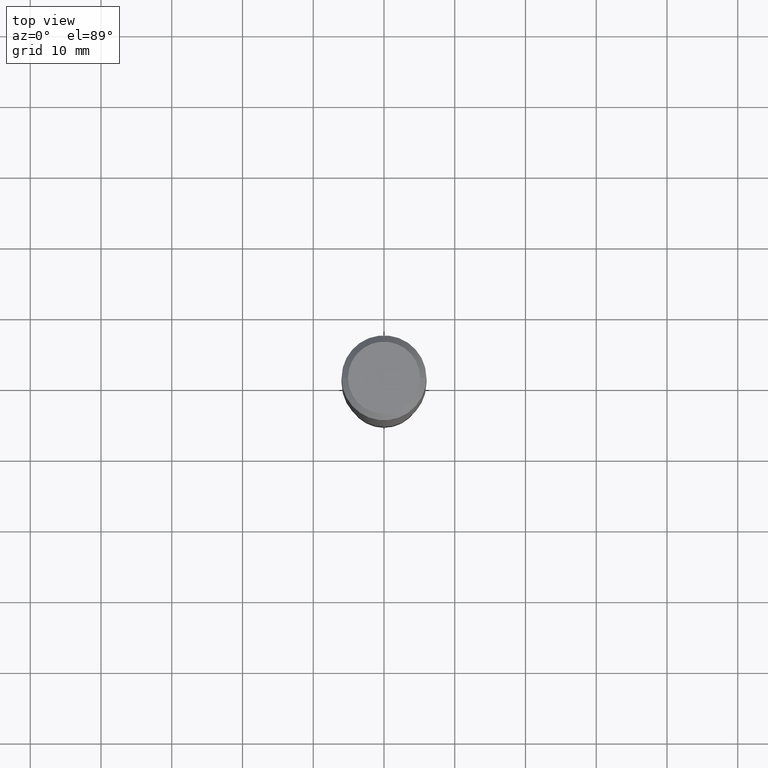
[diagram: clean part render]
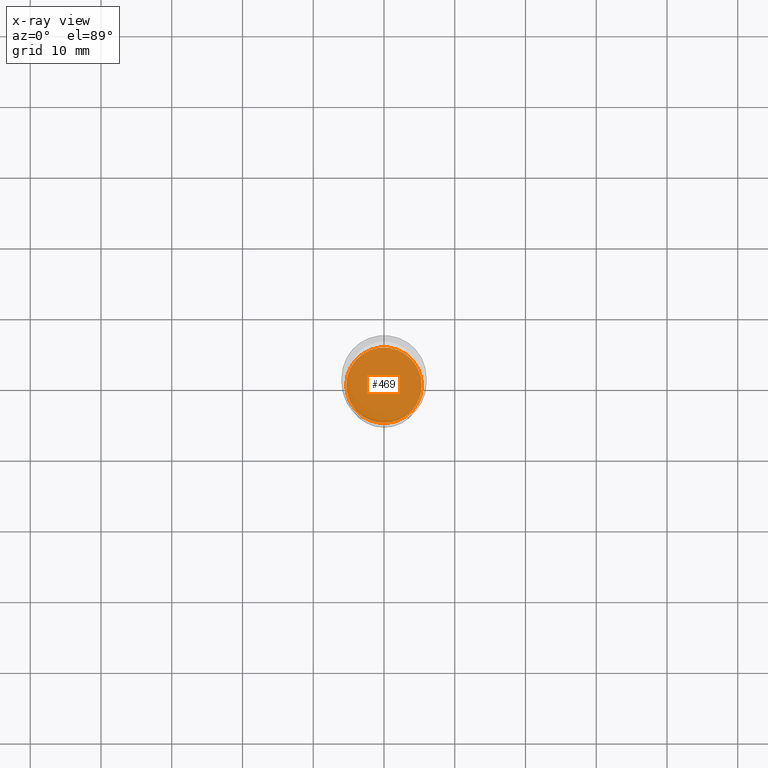
[diagram: x-ray — body ghosted, one internal face saturated and labeled with its STEP entity id]
A machine part, top view, then the same camera in x-ray: the body is ghosted and one INTERNAL B-rep face — a face not visible from any outside direction — is saturated and labeled: STEP entity #469.
In plain terms, the highlighted planar face has unit normal (-0, 0, 1).
Its self-contained STEP definition (entity closure, byte-faithful):
#8 = ORIENTED_EDGE ( 'NONE', *, *, #140, .F. ) ;
#14 = DIRECTION ( 'NONE',  ( 1.000000000000000000, -6.982962677686268288E-15, 0.000000000000000000 ) ) ;
#37 = CIRCLE ( 'NONE', #312, 0.2101500000000000035 ) ;
#71 = ORIENTED_EDGE ( 'NONE', *, *, #179, .F. ) ;
#72 = CARTESIAN_POINT ( 'NONE',  ( -0.2101500000000000035, -7.026502013608272383E-15, -2.440900000000000070 ) ) ;
#79 = PLANE ( 'NONE',  #183 ) ;
#96 = DIRECTION ( 'NONE',  ( -2.445468806185136597E-29, 3.491481338843145583E-15, 1.000000000000000000 ) ) ;
#105 = DIRECTION ( 'NONE',  ( 1.000000000000000000, -6.982962677686265922E-15, 4.876176775795935793E-29 ) ) ;
#113 = DIRECTION ( 'NONE',  ( -2.438088387897960049E-29, 3.491481338843145188E-15, 1.000000000000000000 ) ) ;
#114 = EDGE_LOOP ( 'NONE', ( #8, #71 ) ) ;
#129 = CARTESIAN_POINT ( 'NONE',  ( 5.969144809017300159E-29, -8.522356799982234543E-15, -2.440900000000000070 ) ) ;
#140 = EDGE_CURVE ( 'NONE', #295, #374, #368, .T. ) ;
#172 = DIRECTION ( 'NONE',  ( 1.000000000000000000, -6.982962677686268288E-15, 0.000000000000000000 ) ) ;
#179 = EDGE_CURVE ( 'NONE', #374, #295, #37, .T. ) ;
#183 = AXIS2_PLACEMENT_3D ( 'NONE', #219, #113, #105 ) ;
#219 = CARTESIAN_POINT ( 'NONE',  ( 3.753414775677078868E-29, -1.169540831924709376E-14, -2.440900000000000070 ) ) ;
#295 = VERTEX_POINT ( 'NONE', #441 ) ;
#312 = AXIS2_PLACEMENT_3D ( 'NONE', #317, #96, #172 ) ;
#317 = CARTESIAN_POINT ( 'NONE',  ( 5.969144809017300159E-29, -8.522356799982234543E-15, -2.440900000000000070 ) ) ;
#350 = AXIS2_PLACEMENT_3D ( 'NONE', #129, #435, #14 ) ;
#368 = CIRCLE ( 'NONE', #350, 0.2101500000000000035 ) ;
#374 = VERTEX_POINT ( 'NONE', #72 ) ;
#380 = FACE_OUTER_BOUND ( 'NONE', #114, .T. ) ;
#435 = DIRECTION ( 'NONE',  ( -2.445468806185136597E-29, 3.491481338843145583E-15, 1.000000000000000000 ) ) ;
#441 = CARTESIAN_POINT ( 'NONE',  ( 0.2101500000000000035, -9.989826406698003297E-15, -2.440900000000000070 ) ) ;
#469 = ADVANCED_FACE ( 'NONE', ( #380 ), #79, .F. ) ;